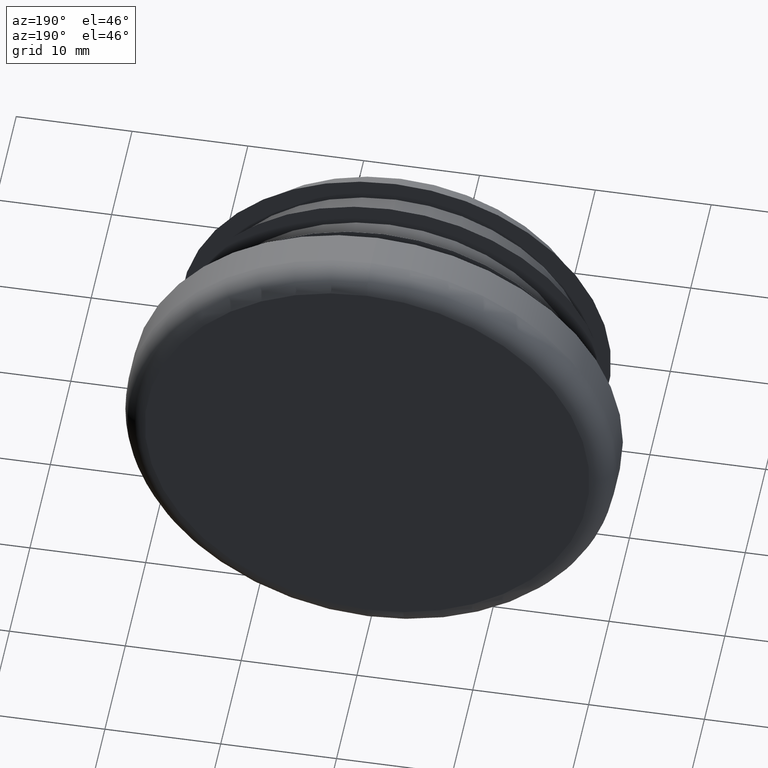
[diagram: clean part render]
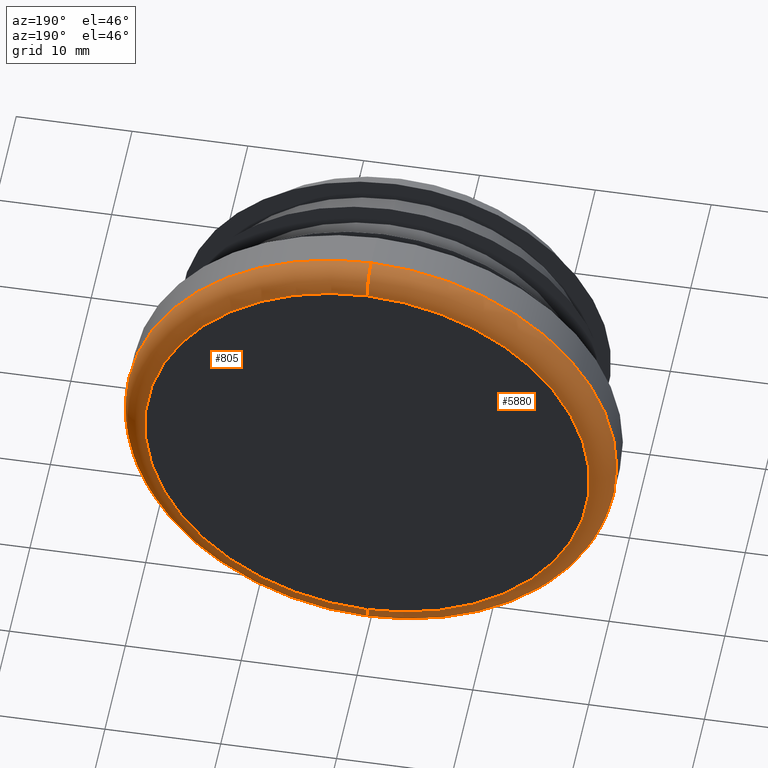
[diagram: same view with one multi-face feature highlighted, each face labeled with its STEP entity id]
A machine part, auxiliary view. The highlighted faces form ONE feature: a constant-radius fillet chain: 2 tangent blend faces with common blend radius 2 mm. The faces share edges in the B-rep.
Their STEP definitions:
[1] entity #805 (Torus):
#219 = CARTESIAN_POINT ( 'NONE',  ( 0.0000000000000000000, 3.000000000000000000, 0.0000000000000000000 ) ) ;
#310 = TOROIDAL_SURFACE ( 'NONE', #10289, 19.20000000000000300, 2.000000000000000000 ) ;
#398 = AXIS2_PLACEMENT_3D ( 'NONE', #730, #6601, #1586 ) ;
#437 = EDGE_CURVE ( 'NONE', #9898, #9294, #2452, .T. ) ;
#730 = CARTESIAN_POINT ( 'NONE',  ( 0.0000000000000000000, 3.000000000000000000, 19.20000000000000300 ) ) ;
#794 = DIRECTION ( 'NONE',  ( 0.0000000000000000000, 0.0000000000000000000, 1.000000000000000000 ) ) ;
#805 = ADVANCED_FACE ( 'NONE', ( #4818 ), #310, .T. ) ;
#1076 = DIRECTION ( 'NONE',  ( 0.0000000000000000000, 0.0000000000000000000, 1.000000000000000000 ) ) ;
#1413 = CARTESIAN_POINT ( 'NONE',  ( 0.0000000000000000000, 5.000000000000000000, 19.20000000000000300 ) ) ;
#1491 = DIRECTION ( 'NONE',  ( 0.0000000000000000000, 0.0000000000000000000, 1.000000000000000000 ) ) ;
#1498 = CARTESIAN_POINT ( 'NONE',  ( 0.0000000000000000000, 3.000000000000000000, 0.0000000000000000000 ) ) ;
#1560 = DIRECTION ( 'NONE',  ( 0.0000000000000000000, 1.000000000000000000, 0.0000000000000000000 ) ) ;
#1586 = DIRECTION ( 'NONE',  ( 0.0000000000000000000, 0.0000000000000000000, 1.000000000000000000 ) ) ;
#2109 = CARTESIAN_POINT ( 'NONE',  ( 0.0000000000000000000, 3.000000000000000000, -21.19999999999999900 ) ) ;
#2130 = VERTEX_POINT ( 'NONE', #1413 ) ;
#2452 = CIRCLE ( 'NONE', #3938, 2.000000000000001800 ) ;
#2546 = AXIS2_PLACEMENT_3D ( 'NONE', #219, #6119, #1076 ) ;
#3429 = EDGE_CURVE ( 'NONE', #6645, #2130, #8067, .T. ) ;
#3799 = DIRECTION ( 'NONE',  ( 1.224646799147351500E-016, 0.0000000000000000000, -1.000000000000000000 ) ) ;
#3801 = DIRECTION ( 'NONE',  ( 1.000000000000000000, -0.0000000000000000000, 1.224646799147353200E-016 ) ) ;
#3808 = CARTESIAN_POINT ( 'NONE',  ( 2.351321854362918100E-015, 3.000000000000000000, -19.20000000000000300 ) ) ;
#3938 = AXIS2_PLACEMENT_3D ( 'NONE', #3808, #3801, #3799 ) ;
#4491 = EDGE_CURVE ( 'NONE', #9898, #6645, #8165, .T. ) ;
#4818 = FACE_OUTER_BOUND ( 'NONE', #9072, .T. ) ;
#4898 = CARTESIAN_POINT ( 'NONE',  ( 2.596251214192388800E-015, 3.000000000000000000, 21.19999999999999900 ) ) ;
#4950 = CIRCLE ( 'NONE', #7782, 19.20000000000000300 ) ;
#5833 = DIRECTION ( 'NONE',  ( 0.0000000000000000000, 1.000000000000000000, 0.0000000000000000000 ) ) ;
#6119 = DIRECTION ( 'NONE',  ( -0.0000000000000000000, -1.000000000000000000, -0.0000000000000000000 ) ) ;
#6601 = DIRECTION ( 'NONE',  ( -1.000000000000000000, 0.0000000000000000000, 0.0000000000000000000 ) ) ;
#6645 = VERTEX_POINT ( 'NONE', #4898 ) ;
#7024 = CARTESIAN_POINT ( 'NONE',  ( 2.473786534277653600E-015, 5.000000000000000000, -19.20000000000000300 ) ) ;
#7167 = EDGE_CURVE ( 'NONE', #2130, #9294, #4950, .T. ) ;
#7646 = ORIENTED_EDGE ( 'NONE', *, *, #437, .T. ) ;
#7782 = AXIS2_PLACEMENT_3D ( 'NONE', #10450, #5833, #794 ) ;
#8067 = CIRCLE ( 'NONE', #398, 2.000000000000001800 ) ;
#8165 = CIRCLE ( 'NONE', #2546, 21.19999999999999900 ) ;
#9072 = EDGE_LOOP ( 'NONE', ( #10150, #7646, #9076, #9798 ) ) ;
#9076 = ORIENTED_EDGE ( 'NONE', *, *, #7167, .F. ) ;
#9294 = VERTEX_POINT ( 'NONE', #7024 ) ;
#9798 = ORIENTED_EDGE ( 'NONE', *, *, #3429, .F. ) ;
#9898 = VERTEX_POINT ( 'NONE', #2109 ) ;
#10150 = ORIENTED_EDGE ( 'NONE', *, *, #4491, .F. ) ;
#10289 = AXIS2_PLACEMENT_3D ( 'NONE', #1498, #1560, #1491 ) ;
#10450 = CARTESIAN_POINT ( 'NONE',  ( 0.0000000000000000000, 5.000000000000000000, 0.0000000000000000000 ) ) ;
[2] entity #5880 (Torus):
#334 = FACE_OUTER_BOUND ( 'NONE', #8185, .T. ) ;
#398 = AXIS2_PLACEMENT_3D ( 'NONE', #730, #6601, #1586 ) ;
#437 = EDGE_CURVE ( 'NONE', #9898, #9294, #2452, .T. ) ;
#633 = CARTESIAN_POINT ( 'NONE',  ( 0.0000000000000000000, 3.000000000000000000, 0.0000000000000000000 ) ) ;
#730 = CARTESIAN_POINT ( 'NONE',  ( 0.0000000000000000000, 3.000000000000000000, 19.20000000000000300 ) ) ;
#1413 = CARTESIAN_POINT ( 'NONE',  ( 0.0000000000000000000, 5.000000000000000000, 19.20000000000000300 ) ) ;
#1453 = DIRECTION ( 'NONE',  ( 0.0000000000000000000, 1.000000000000000000, 0.0000000000000000000 ) ) ;
#1485 = DIRECTION ( 'NONE',  ( 0.0000000000000000000, 0.0000000000000000000, 1.000000000000000000 ) ) ;
#1586 = DIRECTION ( 'NONE',  ( 0.0000000000000000000, 0.0000000000000000000, 1.000000000000000000 ) ) ;
#1727 = EDGE_CURVE ( 'NONE', #6645, #9898, #2627, .T. ) ;
#1757 = CIRCLE ( 'NONE', #8021, 19.20000000000000300 ) ;
#2109 = CARTESIAN_POINT ( 'NONE',  ( 0.0000000000000000000, 3.000000000000000000, -21.19999999999999900 ) ) ;
#2130 = VERTEX_POINT ( 'NONE', #1413 ) ;
#2452 = CIRCLE ( 'NONE', #3938, 2.000000000000001800 ) ;
#2627 = CIRCLE ( 'NONE', #6857, 21.19999999999999900 ) ;
#2756 = CARTESIAN_POINT ( 'NONE',  ( 0.0000000000000000000, 5.000000000000000000, 0.0000000000000000000 ) ) ;
#3123 = ORIENTED_EDGE ( 'NONE', *, *, #4962, .F. ) ;
#3429 = EDGE_CURVE ( 'NONE', #6645, #2130, #8067, .T. ) ;
#3613 = DIRECTION ( 'NONE',  ( 0.0000000000000000000, 0.0000000000000000000, 1.000000000000000000 ) ) ;
#3799 = DIRECTION ( 'NONE',  ( 1.224646799147351500E-016, 0.0000000000000000000, -1.000000000000000000 ) ) ;
#3801 = DIRECTION ( 'NONE',  ( 1.000000000000000000, -0.0000000000000000000, 1.224646799147353200E-016 ) ) ;
#3808 = CARTESIAN_POINT ( 'NONE',  ( 2.351321854362918100E-015, 3.000000000000000000, -19.20000000000000300 ) ) ;
#3938 = AXIS2_PLACEMENT_3D ( 'NONE', #3808, #3801, #3799 ) ;
#4093 = DIRECTION ( 'NONE',  ( 0.0000000000000000000, 0.0000000000000000000, 1.000000000000000000 ) ) ;
#4106 = DIRECTION ( 'NONE',  ( -0.0000000000000000000, -1.000000000000000000, -0.0000000000000000000 ) ) ;
#4115 = CARTESIAN_POINT ( 'NONE',  ( 0.0000000000000000000, 3.000000000000000000, 0.0000000000000000000 ) ) ;
#4898 = CARTESIAN_POINT ( 'NONE',  ( 2.596251214192388800E-015, 3.000000000000000000, 21.19999999999999900 ) ) ;
#4962 = EDGE_CURVE ( 'NONE', #9294, #2130, #1757, .T. ) ;
#5004 = ORIENTED_EDGE ( 'NONE', *, *, #3429, .T. ) ;
#5507 = AXIS2_PLACEMENT_3D ( 'NONE', #633, #1453, #1485 ) ;
#5880 = ADVANCED_FACE ( 'NONE', ( #334 ), #8564, .T. ) ;
#6601 = DIRECTION ( 'NONE',  ( -1.000000000000000000, 0.0000000000000000000, 0.0000000000000000000 ) ) ;
#6645 = VERTEX_POINT ( 'NONE', #4898 ) ;
#6857 = AXIS2_PLACEMENT_3D ( 'NONE', #4115, #4106, #4093 ) ;
#7024 = CARTESIAN_POINT ( 'NONE',  ( 2.473786534277653600E-015, 5.000000000000000000, -19.20000000000000300 ) ) ;
#7747 = ORIENTED_EDGE ( 'NONE', *, *, #437, .F. ) ;
#8021 = AXIS2_PLACEMENT_3D ( 'NONE', #2756, #8430, #3613 ) ;
#8067 = CIRCLE ( 'NONE', #398, 2.000000000000001800 ) ;
#8185 = EDGE_LOOP ( 'NONE', ( #7747, #9525, #5004, #3123 ) ) ;
#8430 = DIRECTION ( 'NONE',  ( 0.0000000000000000000, 1.000000000000000000, 0.0000000000000000000 ) ) ;
#8564 = TOROIDAL_SURFACE ( 'NONE', #5507, 19.20000000000000300, 2.000000000000000000 ) ;
#9294 = VERTEX_POINT ( 'NONE', #7024 ) ;
#9525 = ORIENTED_EDGE ( 'NONE', *, *, #1727, .F. ) ;
#9898 = VERTEX_POINT ( 'NONE', #2109 ) ;